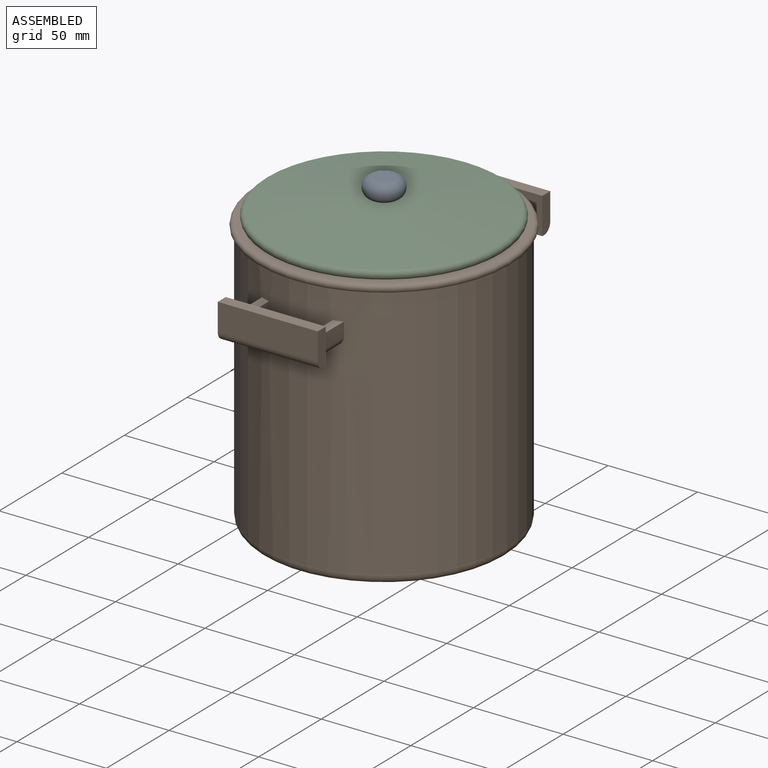
[diagram: assembled view]
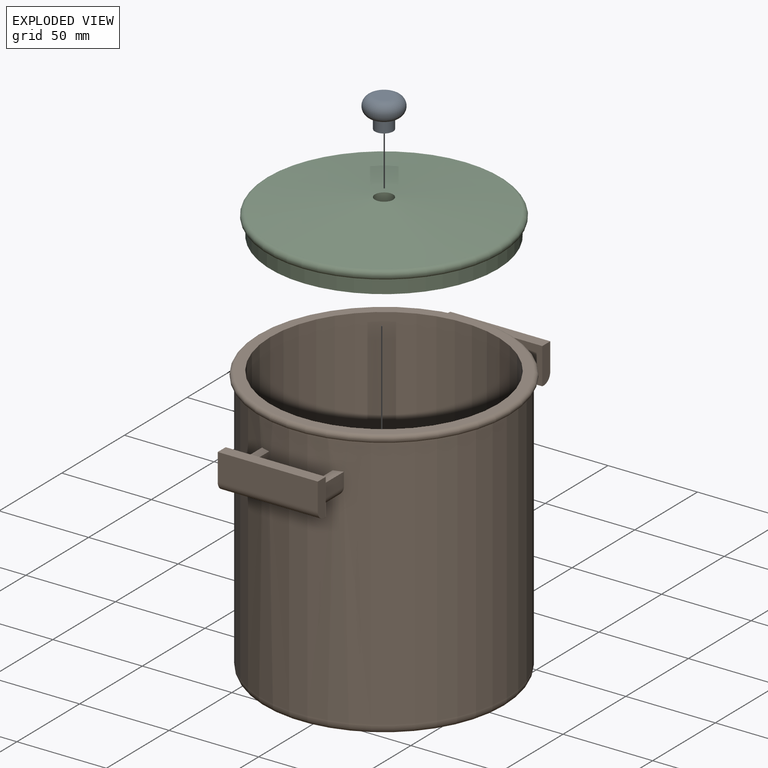
[diagram: exploded view]
GUIDED TOUR — MATED ASSEMBLY (Onshape document db012b3c7453a397197da942, AutoMate assembly db012b3c7453a397197da942_ccd9b57fea45b687d02b48f7_6c3be8bd6756ad7fa227e12b_default)

This assembly has 3 components, labeled P0..P2 below (a component is one placed occurrence of a part; the same part can appear more than once), held together by 2 mates. A mate is a constraint between two components; its type names the relative motion it leaves free:
  SLIDER — leaves translation along the listed axis free.
Axis/direction vectors are unit vectors and 'through' points are millimeter coordinates, both in the assembly's world frame.

MATES
  1. SLIDER "Slider 2": P0 <-> P2, axis (0.000, 0.000, -1.000) through (0.00, 0.00, 157.84) mm
  2. SLIDER "Slider 1": P2 <-> P1, axis (0.000, 0.000, 1.000) through (0.00, 0.00, 152.40) mm

ASSEMBLY ORDER
  1. P2 — the base component [order heuristic]
  2. P0 — core [order heuristic]
  3. P1 [order verified]
Order-tag legend:
  [order verified] — this step's position reverses a verified removal order: the component was checked to insert without passing through the ones already placed.
  [order heuristic] — the first 2 components form the assembly's core: parts whose collision-free extraction could not be verified, listed in mate-graph order.

Of the 3 components, 1 carries the full construction recipe — the FeatureScript program that regenerates the part's solid from scratch; the rest are supplied as boundary geometry only.
Each toured component is shown spotlighted twice — in the assembled view, then in the exploded view, where a leader line traces a displaced component back to its assembled socket (saturated green if recipe-attached, orange if geometry-only; every other component desaturated gray) — followed by its recipe or geometry summary and the mates that hold it.
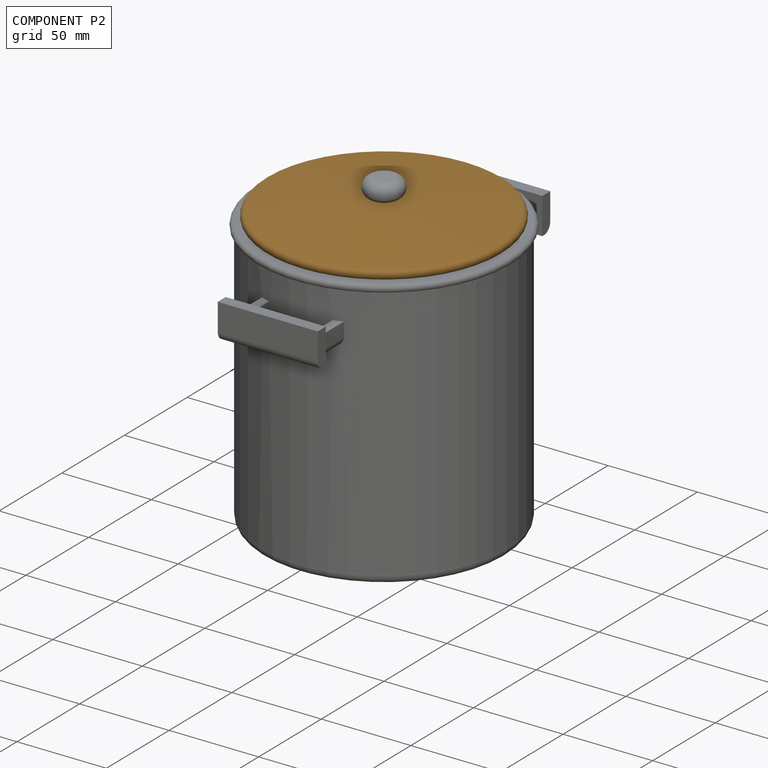
[diagram: component P2 — assembled]
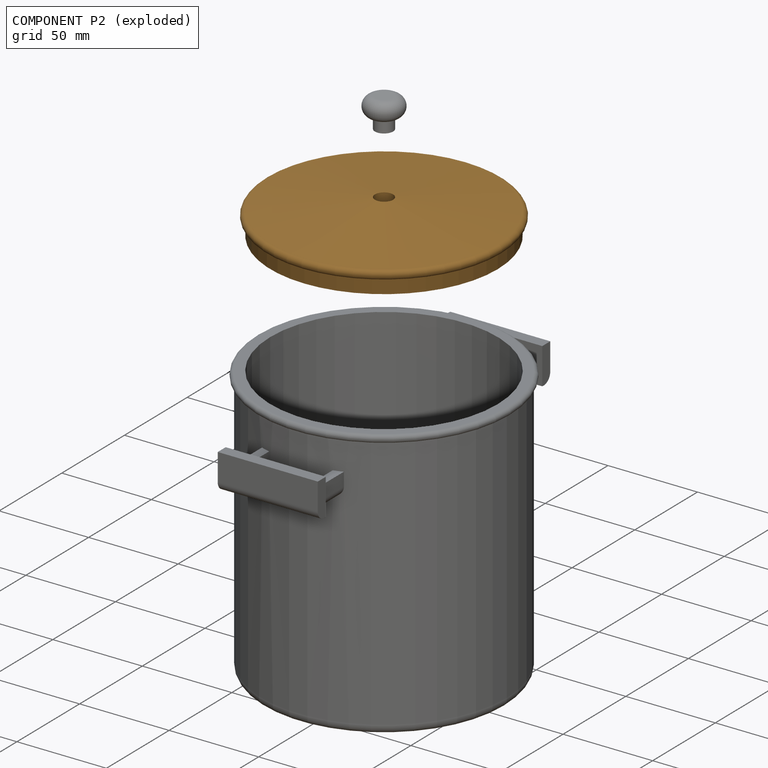
[diagram: component P2 — exploded]
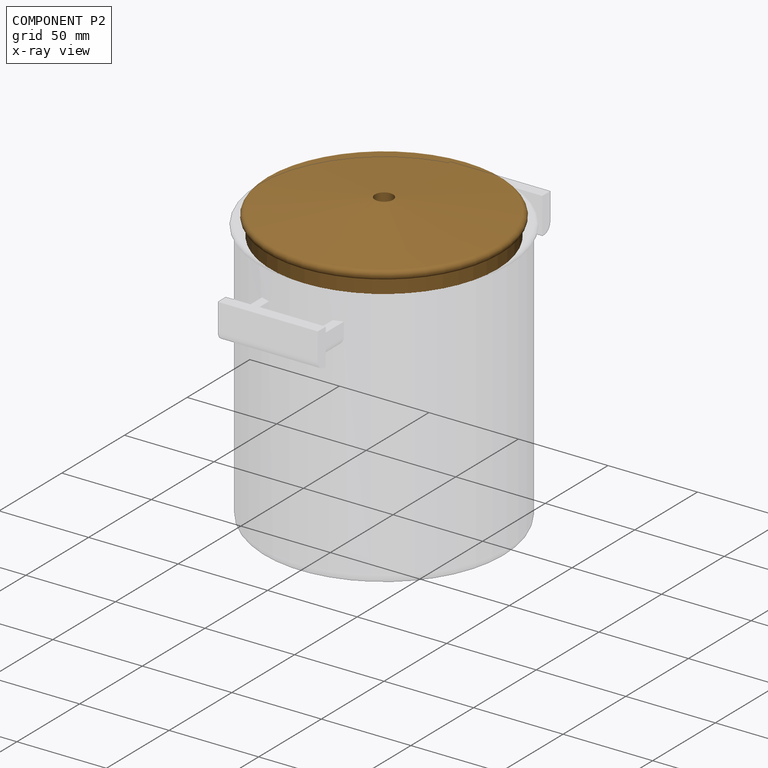
[diagram: component P2 — x-ray view]
COMPONENT P2 — geometry summary (no construction recipe available for this part):
  bounding box: 142.6 x 142.6 x 19.4 mm
  B-rep topology: 1 solid, 8 faces, 24 edges
  volume: 107398 mm^3 (27% of its bounding box)
  symmetry: revolution-symmetric about the z axis through its bounding-box center; mirror-symmetric across its x mid-plane, y mid-plane
Held by: SLIDER mate "Slider 2" to P0; SLIDER mate "Slider 1" to P1.
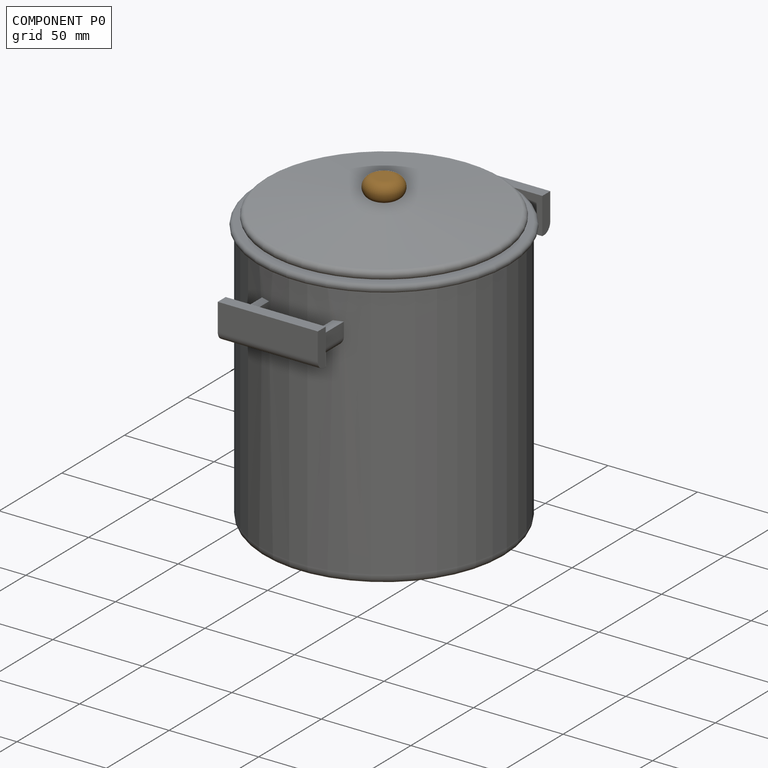
[diagram: component P0 — assembled]
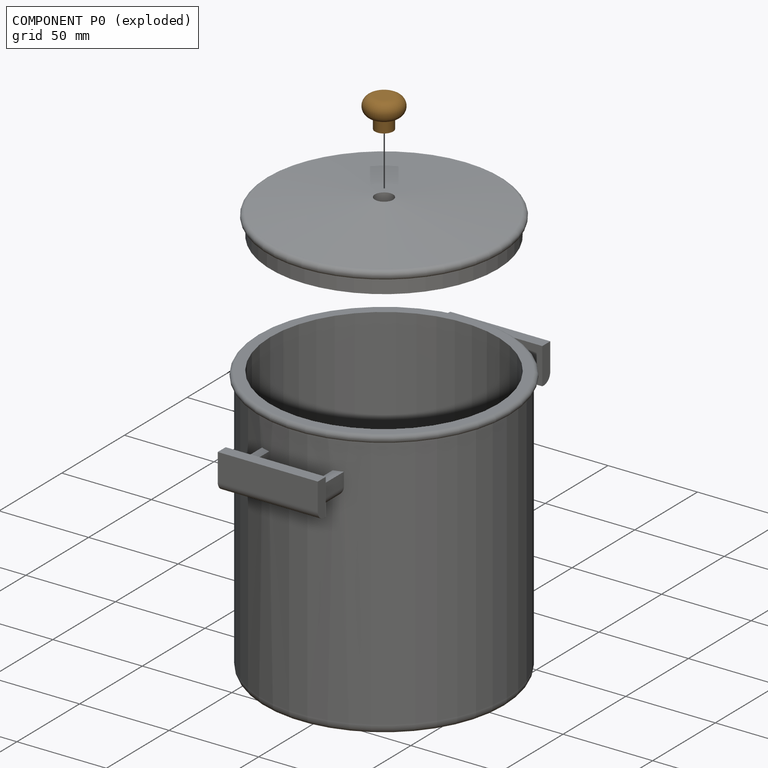
[diagram: component P0 — exploded]
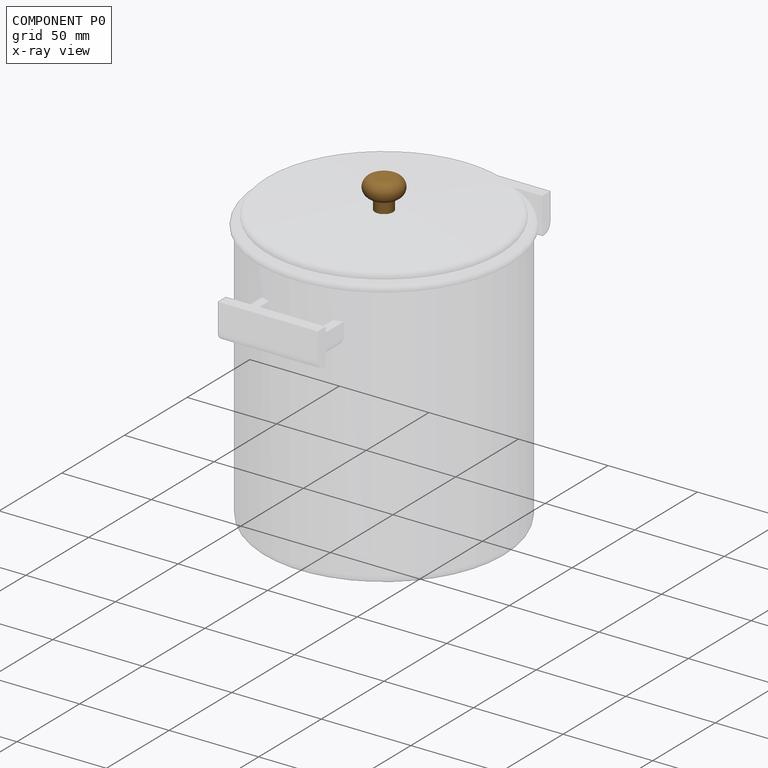
[diagram: component P0 — x-ray view]
COMPONENT P0 — geometry summary (no construction recipe available for this part):
  bounding box: 20.6 x 20.6 x 16.8 mm
  B-rep topology: 1 solid, 4 faces, 10 edges
  volume: 3348 mm^3 (47% of its bounding box)
  symmetry: revolution-symmetric about the z axis through its bounding-box center; mirror-symmetric across its x mid-plane, y mid-plane
Held by: SLIDER mate "Slider 2" to P2.
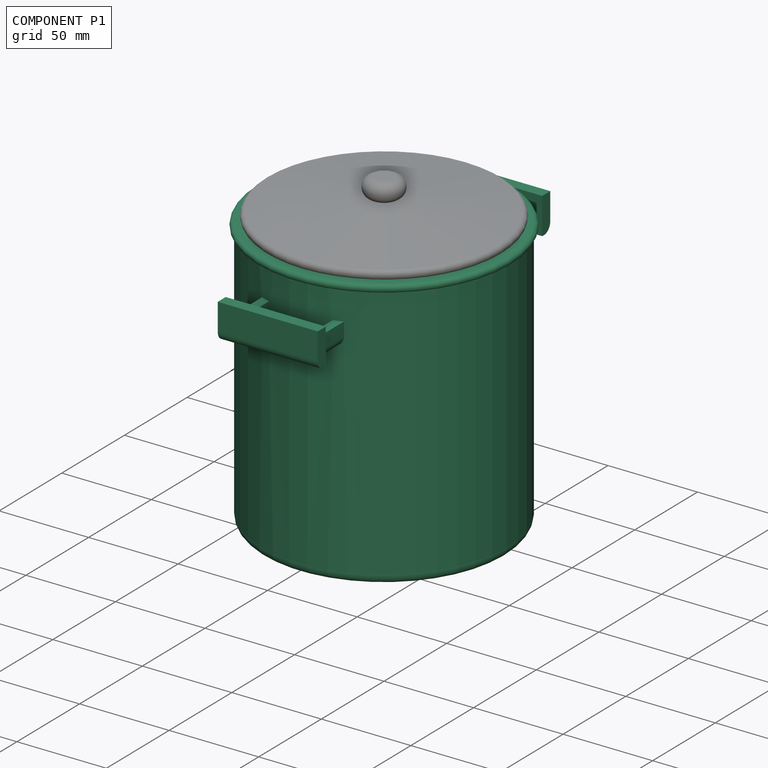
[diagram: component P1 — assembled]
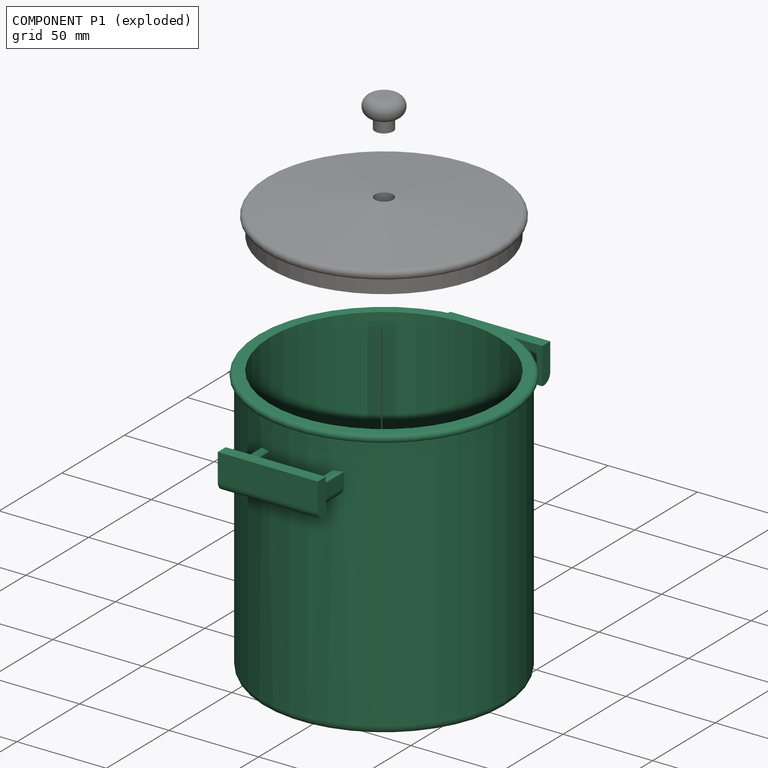
[diagram: component P1 — exploded]
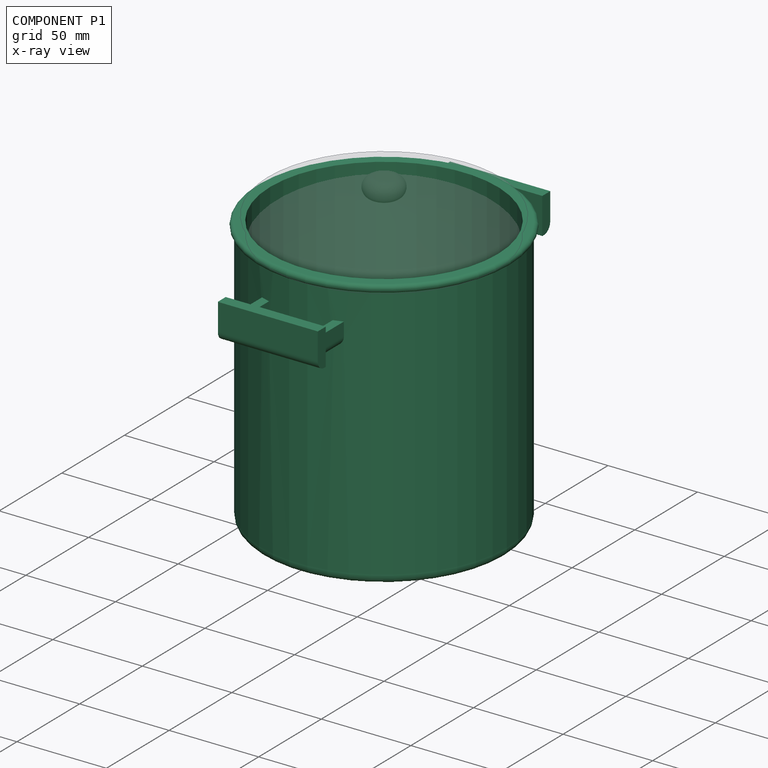
[diagram: component P1 — x-ray view]
COMPONENT P1 — recipe-attached (CADFS 00281153, mesh-verified: the recipe's output STEP matches this component's geometry to below the mesh-comparison resolution (tessellation chordal tolerance ~0.418 mm)).
Held by: SLIDER mate "Slider 1" to P2.
Construction recipe (FeatureScript — the CAD program that rebuilds this solid; sketch coordinates are in the units given by the * unit suffixes, e.g. mm):

FeatureScript 1511;
import(path : "onshape/std/geometry.fs", version : "1511.0");
import(path : "onshape/std/common.fs", version : "1511.0");
const mm = millimeter;
const VERTEX = EntityType.VERTEX;
const EDGE = EntityType.EDGE;
const FACE = EntityType.FACE;
const BODY = EntityType.BODY;
function v(x, y){return vector(x, y);}
function OD(order){return orderDisambiguation(order);}
function OSD(set){return originalSetDisambiguation(set);}
function TD(topology){return topologyDisambiguation(topology);}
function TDD(query){return trueDependencyDisambiguation(query);}
function sQuery(a, b, c) {return sketchEntityQuery(a, b, c);}

annotation { "Feature Type Name" : "Feature", "Feature Type Description" : "" }
export const myFeature = defineFeature(function(context is Context, id is Id, definition is map)
    precondition{}
    {
        {
            var Q0;
            Q0=qCreatedBy(makeId("Right.planeOp"),FACE);
            var sketch = newSketch(context, id + "F0", { "sketchPlane" : qUnion([Q0])});
            skLineSegment(sketch, "E0", {"start": v(0, 5.08) * mm, "end": v(63.5, 5.08) * mm});
            skLineSegment(sketch, "E1", {"start": v(63.5, 5.08) * mm, "end": v(63.5, 152.4) * mm});
            skLineSegment(sketch, "E2", {"start": v(63.5, 152.4) * mm, "end": v(68.58, 152.4) * mm});
            skLineSegment(sketch, "E3", {"start": v(0, 0) * mm, "end": v(0, 5.08) * mm});
            skArc(sketch, "E4", {"start": v(68.58, 148.15) * mm, "mid": v(70.7, 150.28) * mm, "end": v(68.58, 152.4) * mm});
            skArc(sketch, "E5", {"start": v(63.32, 0) * mm, "mid": v(67.24, 1.57) * mm, "end": v(68.58, 5.57) * mm});
            skLineSegment(sketch, "E6", {"start": v(0, 0) * mm, "end": v(63.32, 0) * mm});
            skLineSegment(sketch, "E7", {"start": v(68.58, 148.15) * mm, "end": v(68.58, 5.57) * mm});
            skSolve(sketch);
        }
        {
            var Q0;
            Q0 = qSketchRegion(id + "F0", true);
            var Q1;
            Q1=sQuery(id+"F0.wireOp",EDGE,"E3");
            revolve(context, id + "F1", {"entities" : qUnion([Q0]), "axis" : qUnion([Q1]), "revolveType" : RevolveType.FULL});
        }
        {
            var Q0;
            Q0=qCreatedBy(makeId("Front.planeOp"),FACE);
            cPlane(context, id + "F2", {"entities" : qUnion([Q0]), "cplaneType" : CPlaneType.OFFSET, "offset" : 86.36 * mm, "width" : 152.4 * mm, "height" : 152.4 * mm});
        }
        {
            var Q0;
            Q0=qCreatedBy(id+"F2.planeOp",FACE);
            var sketch = newSketch(context, id + "F3", { "sketchPlane" : qUnion([Q0])});
            skLineSegment(sketch, "E8.bottom", {"start": v(-17.78, 119.45) * mm, "end": v(-22.86, 119.45) * mm});
            skLineSegment(sketch, "E8.top", {"start": v(-17.78, 132.15) * mm, "end": v(-22.86, 132.15) * mm});
            skLineSegment(sketch, "E8.left", {"start": v(-17.78, 119.45) * mm, "end": v(-17.78, 132.15) * mm});
            skLineSegment(sketch, "E8.right", {"start": v(-22.86, 119.45) * mm, "end": v(-22.86, 132.15) * mm});
            skPoint(sketch, "E8.middle", {"position": v(-20.32, 125.8) * mm});
            skLineSegment(sketch, "E9.MirrorCS", {"start": v(17.78, 119.45) * mm, "end": v(17.78, 132.15) * mm});
            skLineSegment(sketch, "E10.MirrorCS", {"start": v(17.78, 132.15) * mm, "end": v(22.86, 132.15) * mm});
            skLineSegment(sketch, "E11.MirrorCS", {"start": v(22.86, 119.45) * mm, "end": v(22.86, 132.15) * mm});
            skLineSegment(sketch, "E12.MirrorCS", {"start": v(17.78, 119.45) * mm, "end": v(22.86, 119.45) * mm});
            skSolve(sketch);
        }
        {
            var Q0;
            Q0 = qSketchRegion(id + "F3", true);
            extrude(context, id + "F4", {"entities" : qUnion([Q0]), "operationType" : NewBodyOperationType.ADD, "endBound" : BoundingType.UP_TO_NEXT, "oppositeDirection" : true, "depth" : 25.4 * mm});
        }
        {
            var Q0;
            Q0=qCreatedBy(id+"F2.planeOp",FACE);
            cPlane(context, id + "F5", {"entities" : qUnion([Q0]), "cplaneType" : CPlaneType.OFFSET, "offset" : 6.35 * mm, "width" : 152.4 * mm, "height" : 152.4 * mm});
        }
        {
            var Q0;
            Q0=qCreatedBy(id+"F5.planeOp",FACE);
            var sketch = newSketch(context, id + "F6", { "sketchPlane" : qUnion([Q0])});
            skLineSegment(sketch, "E13.bottom", {"start": v(-27.94, 139.26) * mm, "end": v(27.94, 139.26) * mm});
            skLineSegment(sketch, "E13.top", {"start": v(-27.94, 118.94) * mm, "end": v(27.94, 118.94) * mm});
            skLineSegment(sketch, "E13.left", {"start": v(-27.94, 139.26) * mm, "end": v(-27.94, 118.94) * mm});
            skLineSegment(sketch, "E13.right", {"start": v(27.94, 139.26) * mm, "end": v(27.94, 118.94) * mm});
            skSolve(sketch);
        }
        {
            var Q0;
            Q0 = qSketchRegion(id + "F6", true);
            var Q1;
            Q1=makeQuery(id+"F4.opExtrude","CAP_FACE",FACE,{"disambiguationData":[OSD([sQuery(id+"F3.wireOp",EDGE,"E8.bottom"),sQuery(id+"F3.wireOp",EDGE,"E8.top"),sQuery(id+"F3.wireOp",EDGE,"E8.left"),sQuery(id+"F3.wireOp",EDGE,"E8.right")])],"isStart":true});
            extrude(context, id + "F7", {"entities" : qUnion([Q0]), "operationType" : NewBodyOperationType.ADD, "endBound" : BoundingType.UP_TO_SURFACE, "oppositeDirection" : true, "endBoundEntityFace" : qUnion([Q1]), "depth" : 25.4 * mm});
        }
        {
            var Q0;
            Q0=qCreatedBy(makeId("Front.planeOp"),FACE);
            cPlane(context, id + "F8", {"entities" : qUnion([Q0]), "cplaneType" : CPlaneType.OFFSET, "offset" : 86.36 * mm, "oppositeDirection" : true, "width" : 152.4 * mm, "height" : 152.4 * mm});
        }
        {
            var Q0;
            Q0=qCreatedBy(id+"F8.planeOp",FACE);
            cPlane(context, id + "F9", {"entities" : qUnion([Q0]), "cplaneType" : CPlaneType.OFFSET, "offset" : 6.35 * mm, "oppositeDirection" : true, "width" : 152.4 * mm, "height" : 152.4 * mm});
        }
        {
            var Q0;
            Q0=qCreatedBy(id+"F8.planeOp",FACE);
            var sketch = newSketch(context, id + "F10", { "sketchPlane" : qUnion([Q0])});
            skLineSegment(sketch, "E14.bottom", {"start": v(22.86, 132.15) * mm, "end": v(17.78, 132.15) * mm});
            skLineSegment(sketch, "E14.top", {"start": v(22.86, 119.45) * mm, "end": v(17.78, 119.45) * mm});
            skLineSegment(sketch, "E14.left", {"start": v(22.86, 132.15) * mm, "end": v(22.86, 119.45) * mm});
            skLineSegment(sketch, "E14.right", {"start": v(17.78, 132.15) * mm, "end": v(17.78, 119.45) * mm});
            skLineSegment(sketch, "E15.MirrorCS", {"start": v(-17.78, 132.15) * mm, "end": v(-17.78, 119.45) * mm});
            skLineSegment(sketch, "E16.MirrorCS", {"start": v(-22.86, 132.15) * mm, "end": v(-17.78, 132.15) * mm});
            skLineSegment(sketch, "E17.MirrorCS", {"start": v(-22.86, 132.15) * mm, "end": v(-22.86, 119.45) * mm});
            skLineSegment(sketch, "E18.MirrorCS", {"start": v(-22.86, 119.45) * mm, "end": v(-17.78, 119.45) * mm});
            skSolve(sketch);
        }
        {
            var Q0;
            Q0 = qSketchRegion(id + "F10", true);
            var Q1;
            Q1=makeQuery(id+"F1.opRevolve","SWEPT_FACE",FACE,{"disambiguationData":[OSD([sQuery(id+"F0.wireOp",EDGE,"E7")])]});
            extrude(context, id + "F11", {"entities" : qUnion([Q0]), "operationType" : NewBodyOperationType.ADD, "endBound" : BoundingType.UP_TO_SURFACE, "endBoundEntityFace" : qUnion([Q1]), "depth" : 25.4 * mm});
        }
        {
            var Q0;
            Q0=qCreatedBy(id+"F9.planeOp",FACE);
            var sketch = newSketch(context, id + "F12", { "sketchPlane" : qUnion([Q0])});
            skLineSegment(sketch, "E19.bottom", {"start": v(27.94, 139.26) * mm, "end": v(-27.94, 139.26) * mm});
            skLineSegment(sketch, "E19.top", {"start": v(27.94, 118.94) * mm, "end": v(-27.94, 118.94) * mm});
            skLineSegment(sketch, "E19.left", {"start": v(27.94, 139.26) * mm, "end": v(27.94, 118.94) * mm});
            skLineSegment(sketch, "E19.right", {"start": v(-27.94, 139.26) * mm, "end": v(-27.94, 118.94) * mm});
            skSolve(sketch);
        }
        {
            var Q0;
            Q0 = qSketchRegion(id + "F12", true);
            var Q1;
            Q1=makeQuery(id+"F11.opExtrude","CAP_FACE",FACE,{"disambiguationData":[OSD([sQuery(id+"F10.wireOp",EDGE,"E14.bottom"),sQuery(id+"F10.wireOp",EDGE,"E14.top"),sQuery(id+"F10.wireOp",EDGE,"E14.left"),sQuery(id+"F10.wireOp",EDGE,"E14.right")])],"isStart":true});
            extrude(context, id + "F13", {"entities" : qUnion([Q0]), "operationType" : NewBodyOperationType.ADD, "endBound" : BoundingType.UP_TO_SURFACE, "endBoundEntityFace" : qUnion([Q1]), "depth" : 25.4 * mm});
        }
        {
            var Q0;
            Q0=makeQuery(id+"F7.opExtrude","CAP_EDGE",EDGE,{"disambiguationData":[OSD([sQuery(id+"F6.wireOp",EDGE,"E13.top")])],"isStart":true});
            fillet(context, id + "F14", {"entities" : qUnion([Q0]), "radius" : 5.08 * mm, "tangentPropagation" : true, "allowEdgeOverflow" : false});
        }
        {
            var Q0;
            Q0=makeQuery(id+"F13.opExtrude","CAP_EDGE",EDGE,{"disambiguationData":[OSD([sQuery(id+"F12.wireOp",EDGE,"E19.top")])],"isStart":true});
            fillet(context, id + "F15", {"entities" : qUnion([Q0]), "radius" : 5.08 * mm, "tangentPropagation" : true, "allowEdgeOverflow" : false});
        }
        {
            var Q0;
            Q0=makeQuery(id+"F11.opExtrude","SWEPT_EDGE",EDGE,{"disambiguationData":[OSD([sQuery(id+"F10.wireOp",EDGE,"E17.MirrorCS"),sQuery(id+"F10.wireOp",EDGE,"E18.MirrorCS")])]});
            var Q1;
            Q1=makeQuery(id+"F11.opExtrude","SWEPT_EDGE",EDGE,{"disambiguationData":[OSD([sQuery(id+"F10.wireOp",EDGE,"E14.top"),sQuery(id+"F10.wireOp",EDGE,"E14.left")])]});
            var Q2;
            Q2=makeQuery(id+"F4.opExtrude","SWEPT_EDGE",EDGE,{"disambiguationData":[OSD([sQuery(id+"F3.wireOp",EDGE,"E8.bottom"),sQuery(id+"F3.wireOp",EDGE,"E8.right")])]});
            var Q3;
            Q3=makeQuery(id+"F4.opExtrude","SWEPT_EDGE",EDGE,{"disambiguationData":[OSD([sQuery(id+"F3.wireOp",EDGE,"E11.MirrorCS"),sQuery(id+"F3.wireOp",EDGE,"E12.MirrorCS")])]});
            fillet(context, id + "F16", {"entities" : qUnion([Q0, Q1, Q2, Q3]), "radius" : 5.08 * mm, "tangentPropagation" : true, "allowEdgeOverflow" : false});
        }
    });
PROVENANCE & LICENSES
Assembly (occurrences, transforms, mates, per-part STEP geometry): AutoMate dataset, Zenodo record 7776208, CC0.
Construction recipes: CADFS (HuggingFace VladPyatov/CADFS, CC-BY-4.0, layered over the ABC dataset), FeatureScript reconstruction programs keyed by ABC model id.
Join: ABC meta listings map ABC model id -> Onshape documentId; within a shared document, parts are matched by geometric signature (bounding-box dims + volume at 0.1% relative tolerance, exact B-rep face/solid counts).
Verification: 1 of this assembly's 3 components carries a recipe attachment, and every attachment is mesh-verified: the CADFS STEP and the AutoMate member STEP were compared as meshes in their shared local frame (symmetric sampled-point-to-mesh distance); worst across the 1 attachment: below the mesh-comparison resolution (tessellation chordal tolerance ~0.418 mm) on a 279 mm part.
Renders: orthographic iso camera (az 35 / el 25); the floor grid conveys scale (grid pitch printed in each image; no ruler). In the exploded view each component is displaced by its stored offset vector: the offsets alone carry the explosion direction (mate normal/axis signs are not orientation cues and do not encode it), and separation distances are assigned per mate-chain, not proportionally to assembly-order depth.
